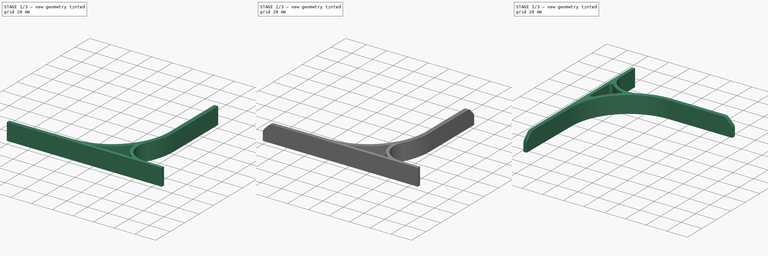
[diagram: build sequence overview — one tinted view per stage of 3, left to right]
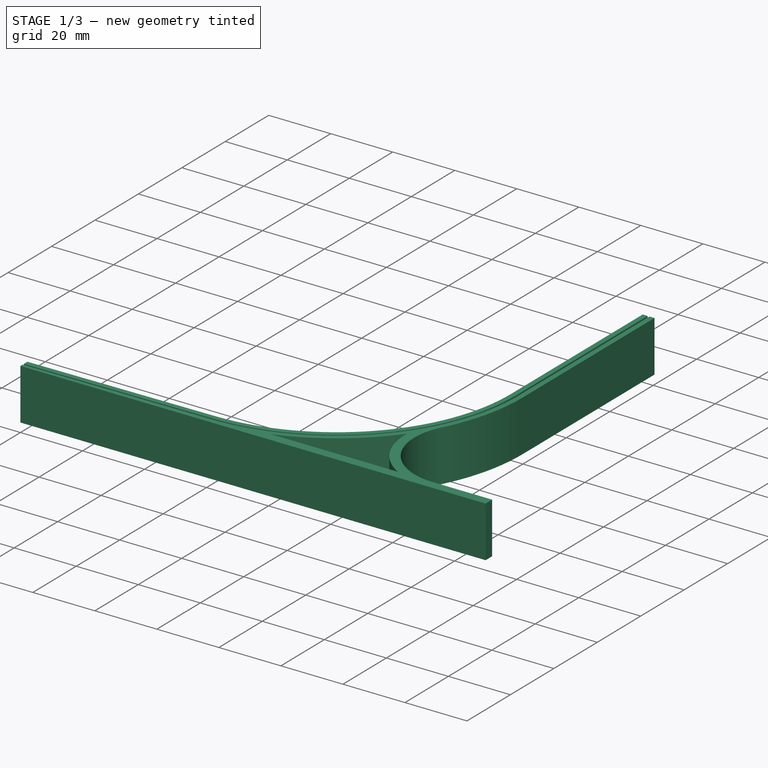
[diagram: stage 1 of 3 — iso view after this stage's code; geometry added in this stage tinted green]
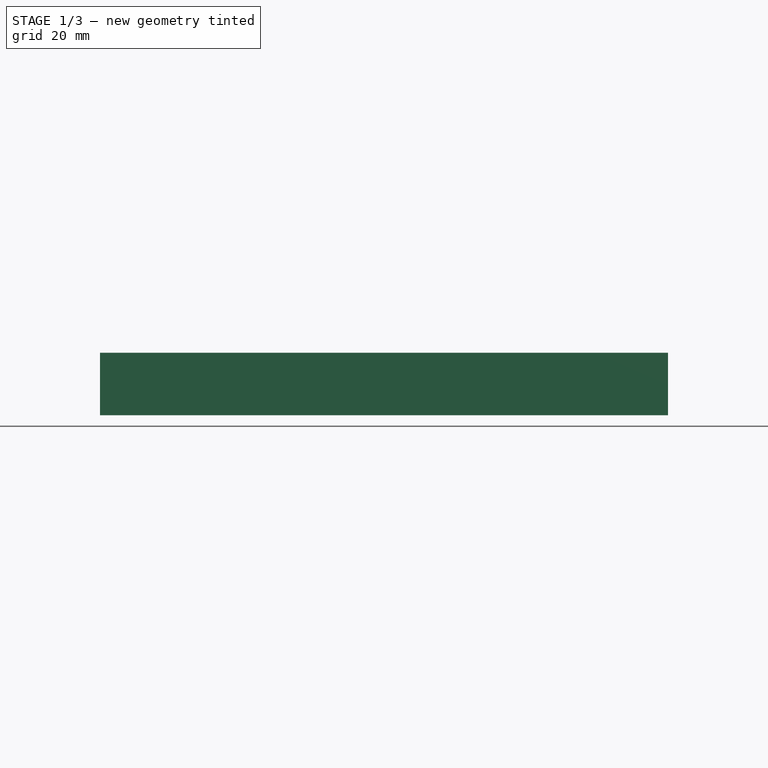
[diagram: stage 1 of 3 — front view after this stage's code; geometry added in this stage tinted green]
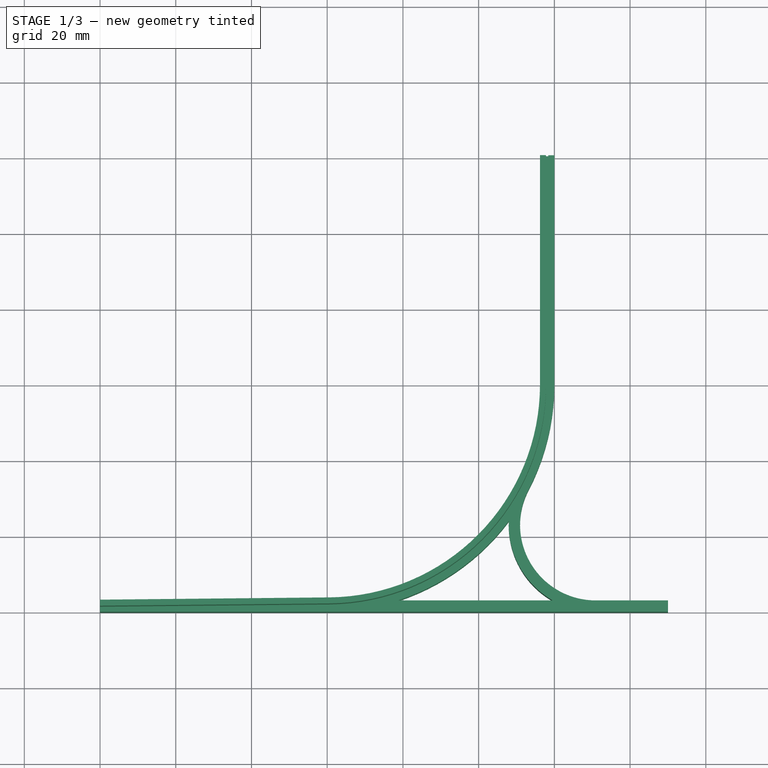
[diagram: stage 1 of 3 — top view after this stage's code; geometry added in this stage tinted green]
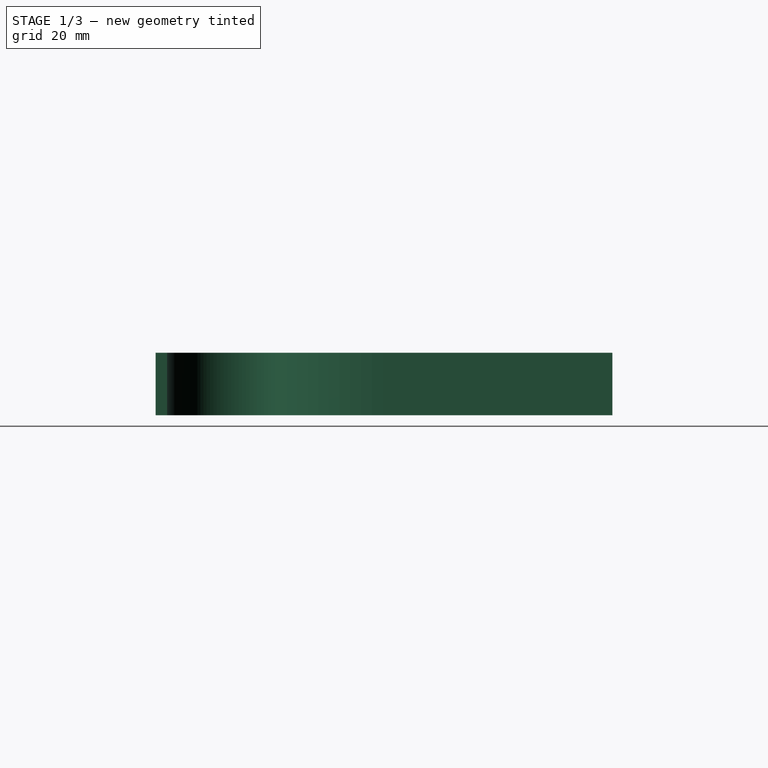
[diagram: stage 1 of 3 — right view after this stage's code; geometry added in this stage tinted green]
FCSTD DOCUMENT  (FreeCAD 0.20R28441 +2 (Git))
Label: photo-studio-stand
License: All rights reserved
LicenseURL: http://en.wikipedia.org/wiki/All_rights_reserved
objects: Sketcher::SketchObject×4, PartDesign::Chamfer×2, PartDesign::Fillet×2, PartDesign::AdditivePipe×1, PartDesign::Pocket×1, PartDesign::Pad×1, PartDesign::Body×1, Part::Mirroring×1
note: 20 computed .brp shape members not serialized (recipe doc carries the construction recipe); baked Part::Feature solids carry a one-line shape summary decoded from their .brp

FEATURE [Sketcher::SketchObject] Sketch
  FullyConstrained = true
  MapMode = 5
  Support = -> [XY_Plane]
  sketch-geometry (3):
    g0: LineSegment StartX=-120 StartY=-0.6 StartZ=0 EndX=-59.4059 EndY=4.405e-13 EndZ=0
    g1: ArcOfCircle CenterX=-60 CenterY=59.9971 CenterZ=0 NormalX=0 NormalY=0 NormalZ=1 AngleXU=0 Radius=60 StartAngle=4.72229 EndAngle=6.28319
    g2: LineSegment StartX=-2.84e-14 StartY=59.9971 StartZ=0 EndX=-2.84e-14 EndY=120.594 EndZ=0
  constraints (9):
    c: PointOnObject(g0,g-1)
    c: Tangent(g0,g1) = -1.5708
    c: PointOnObject(g1,g-2)
    c: Tangent(g1,g2) = -1.5708
    c: DistanceX(g0,g-1) = 120  'length'
    c: Equal(g0,g2)
    c: Radius(g1) = 60
    c: DistanceY(g0,g-1) = 0.6
    c: Vertical(g2)
FEATURE [Sketcher::SketchObject] Sketch001
  AttachmentOffset = pos=(0,0,-120) rot=(0,0,1;0rad)
  ExternalGeometry = -> [Sketch]
  FullyConstrained = true
  MapMode = 5
  Placement = pos=(-120,2.66e-14,-2.66e-14) rot=(0.57735,0.57735,0.57735;2.0944rad)
  Support = -> [YZ_Plane]
  expr: .AttachmentOffset.Base.z = -Sketch.Constraints.length
  sketch-geometry (8):
    g0: LineSegment StartX=-0.6 StartY=2.65e-14 StartZ=0 EndX=-0.6 EndY=16.5 EndZ=0
    g1: LineSegment StartX=-0.6 StartY=16.5 StartZ=0 EndX=1 EndY=16.5 EndZ=0
    g2: LineSegment StartX=1 StartY=16.5 StartZ=0 EndX=1 EndY=1.5 EndZ=0
    g3: LineSegment StartX=1 StartY=1.5 StartZ=0 EndX=1.6 EndY=1.5 EndZ=0
    g4: LineSegment StartX=1.6 StartY=1.5 StartZ=0 EndX=1.6 EndY=16.5 EndZ=0
    g5: LineSegment StartX=1.6 StartY=16.5 StartZ=0 EndX=3.2 EndY=16.5 EndZ=0
    g6: LineSegment StartX=3.2 StartY=16.5 StartZ=0 EndX=3.2 EndY=0 EndZ=0
    g7: LineSegment StartX=3.2 StartY=0 StartZ=0 EndX=-0.6 EndY=2.65e-14 EndZ=0
  constraints (23):
    c: Coincident(g0,g-3)
    c: Coincident(g0,g1)
    c: Vertical(g2)
    c: Coincident(g2,g3)
    c: Coincident(g3,g4)
    c: Vertical(g4)
    c: Coincident(g5,g6)
    c: PointOnObject(g6,g-1)
    c: Coincident(g6,g7)
    c: Vertical(g6)
    c: Horizontal(g1)
    c: Horizontal(g5)
    c: DistanceY(g0,g0) = 16.5  'height'
    c: Equal(g1,g5)
    c: DistanceY(g2,g1) = 15
    c: Horizontal(g3)
    c: DistanceX(g3,g3) = 0.6
    c: Vertical(g0)
    c: Horizontal(g1,g5)
    c: Coincident(g0,g7)
    c: Coincident(g5,g4)
    c: Coincident(g1,g2)
    c: DistanceX(g5,g5) = 1.6
FEATURE [PartDesign::AdditivePipe] AdditivePipe  label="Führungsschiene"
  AuxilleryCurvelinear = true
  AuxillerySpineTangent = false
  Binormal = (0,0,0)
  Mode = 0
  Placement = pos=(0,0,0) rot=(0.57735,0.57735,0.57735;2.0944rad)
  Profile = -> Sketch001
  Refine = true
  Spine = -> Sketch [Edge1,Edge2,Edge3]
  SpineTangent = false
  Transformation = 0
  Transition = 0
FEATURE [Sketcher::SketchObject] Sketch002
  FullyConstrained = true
  MapMode = 5
  Support = -> [XY_Plane]
  expr: Constraints[10] = <<Sketch>>.Constraints.length
  sketch-geometry (4):
    g0: LineSegment StartX=-120 StartY=0 StartZ=0 EndX=0 EndY=0 EndZ=0
    g1: LineSegment StartX=0 StartY=0 StartZ=0 EndX=0 EndY=-10 EndZ=0
    g2: LineSegment StartX=0 StartY=-10 StartZ=0 EndX=-120 EndY=-10 EndZ=0
    g3: LineSegment StartX=-120 StartY=-10 StartZ=0 EndX=-120 EndY=0 EndZ=0
  constraints (11):
    c: Coincident(g0,g1)
    c: Coincident(g1,g2)
    c: Coincident(g2,g3)
    c: Coincident(g3,g0)
    c: Horizontal(g0)
    c: Horizontal(g2)
    c: Vertical(g1)
    c: Vertical(g3)
    c: Coincident(g0,g-1)
    c: DistanceY(g1,g1) = 10
    c: DistanceX(g2,g2) = 120
FEATURE [PartDesign::Pocket] Pocket  label="Auslauf"
  BaseFeature = -> AdditivePipe
  Direction = (0,0,-1)
  Inverse = false
  Length = 5
  Length2 = 5
  Midplane = true
  Placement = pos=(0,0,0) rot=(0.57735,0.57735,0.57735;2.0944rad)
  Profile = -> Sketch002
  ReferenceAxis = -> Sketch002 [N_Axis]
  Refine = true
  Type = 1
FEATURE [Sketcher::SketchObject] Sketch003
  ExternalGeometry = -> [Sketch]
  FullyConstrained = true
  MapMode = 5
  Support = -> [XY_Plane]
  sketch-geometry (12):
    g0: LineSegment StartX=-59.4059 StartY=4.405e-13 StartZ=0 EndX=30 EndY=4.405e-13 EndZ=0
    g1: ArcOfCircle CenterX=10.9311 CenterY=23 CenterZ=0 NormalX=0 NormalY=0 NormalZ=1 AngleXU=0 Radius=20 StartAngle=2.66082 EndAngle=4.71239
    g2: LineSegment StartX=30 StartY=4.405e-13 StartZ=0 EndX=30 EndY=3 EndZ=0
    g3: LineSegment StartX=30 StartY=3 StartZ=0 EndX=10.9311 EndY=3 EndZ=0
    g4: ArcOfCircle CenterX=-60 CenterY=59.9971 CenterZ=0 NormalX=0 NormalY=0 NormalZ=1 AngleXU=0 Radius=60 StartAngle=5.03011 EndAngle=5.63829
    g5: ArcOfCircle CenterX=10.9311 CenterY=23 CenterZ=0 NormalX=0 NormalY=0 NormalZ=1 AngleXU=0 Radius=23 StartAngle=3.10113 EndAngle=4.19591
    g6: LineSegment StartX=-41.2561 StartY=3 StartZ=0 EndX=-0.42674 EndY=3 EndZ=0
    g7: LineSegment StartX=-0.42674 StartY=3 StartZ=0 EndX=1.05471 EndY=5.6087 EndZ=0
    g8: ArcOfCircle CenterX=-60 CenterY=59.9971 CenterZ=0 NormalX=0 NormalY=0 NormalZ=1 AngleXU=0 Radius=59.5 StartAngle=4.72237 EndAngle=6.28319
    g9: LineSegment StartX=-59.4059 StartY=0.5 StartZ=0 EndX=-59.4059 EndY=4.405e-13 EndZ=0
    g10: ArcOfCircle CenterX=-60 CenterY=59.9971 CenterZ=0 NormalX=0 NormalY=0 NormalZ=1 AngleXU=0 Radius=60 StartAngle=5.80241 EndAngle=6.28319
    g11: LineSegment StartX=-0.499975 StartY=59.9971 StartZ=0 EndX=-6.39e-14 EndY=59.9971 EndZ=0
  constraints (34):
    c: Vertical(g2)
    c: DistanceX(g-1,g0) = 30
    c: Perpendicular(g1,g7)
    c: PointOnObject(g7,g1)
    c: Horizontal(g3)
    c: Coincident(g4,g6)
    c: Coincident(g6,g5)
    c: Horizontal(g6)
    c: Coincident(g5,g4)
    c: DistanceY(g2,g2) = 3
    c: Coincident(g1,g5)
    c: Equal(g7,g2)
    c: PointOnObject(g4,g-3)
    c: PointOnObject(g4,g-3)
    c: Coincident(g9,g8)
    c: Vertical(g9)
    c: Coincident(g0,g9)
    c: DistanceY(g9,g9) = 0.5
    c: Coincident(g-3,g0)
    c: PointOnObject(g1,g-3)
    c: Tangent(g10,g1) = 1.5708
    c: Coincident(g8,g4)
    c: Coincident(g8,g10)
    c: Coincident(g2,g3)
    c: Coincident(g2,g0)
    c: Horizontal(g0)
    c: Tangent(g1,g3) = 1.5708
    c: Horizontal(g5,g1)
    c: Radius(g1) = 20
    c: Coincident(g10,g-3)
    c: Coincident(g11,g8)
    c: Coincident(g11,g10)
    c: Horizontal(g11)
    c: Coincident(g7,g5)
FEATURE [PartDesign::Pad] Pad  label="Ständer"
  BaseFeature = -> Pocket
  Direction = (0,0,1)
  Length = 16.5
  Length2 = 10
  Placement = pos=(0,0,0) rot=(0.57735,0.57735,0.57735;2.0944rad)
  Profile = -> Sketch003
  ReferenceAxis = -> Sketch003 [N_Axis]
  Refine = true
  Type = 0
  expr: Length = <<Sketch001>>.Constraints.height
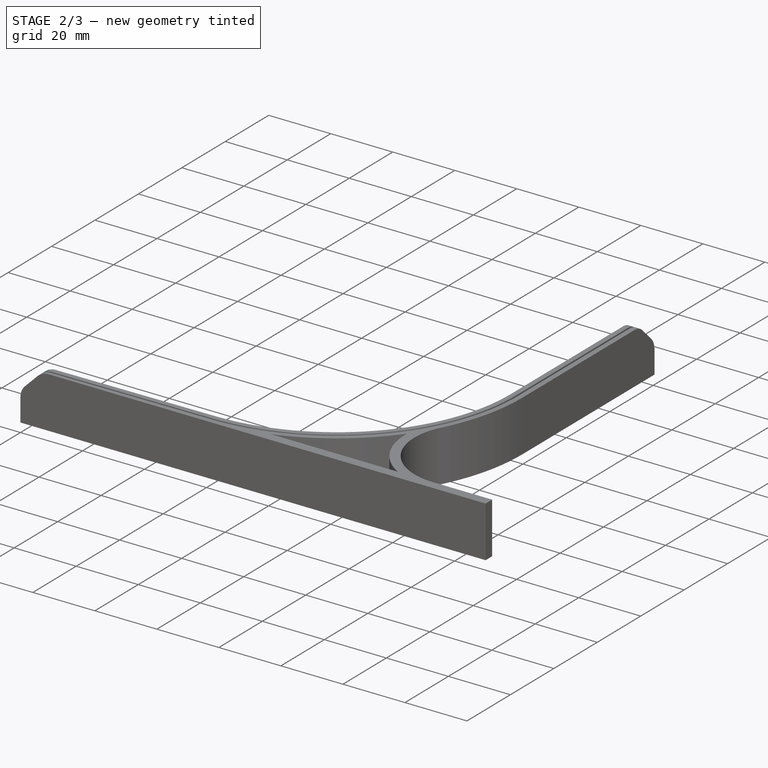
[diagram: stage 2 of 3 — iso view after this stage's code; geometry added in this stage tinted green]
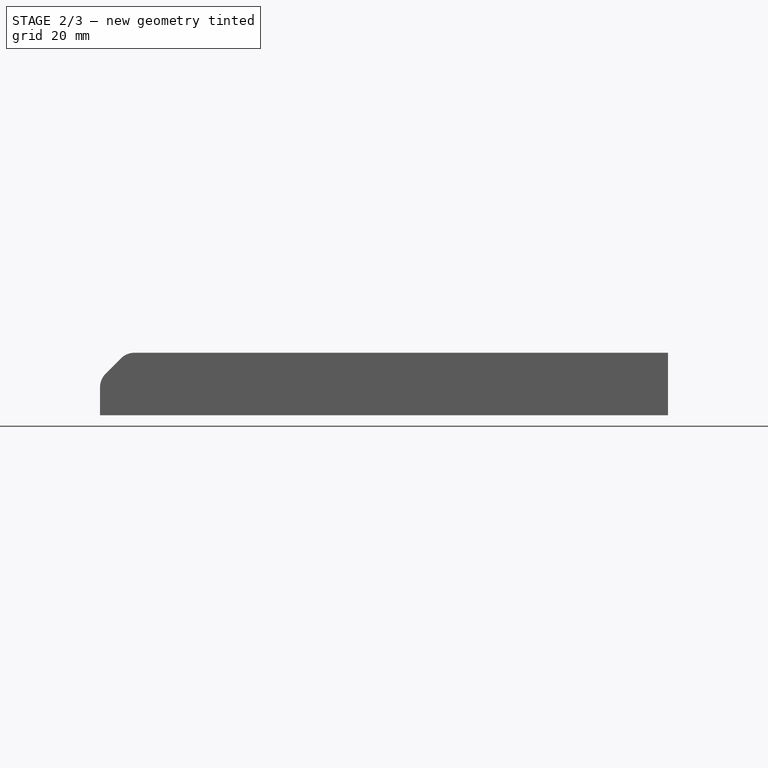
[diagram: stage 2 of 3 — front view after this stage's code; geometry added in this stage tinted green]
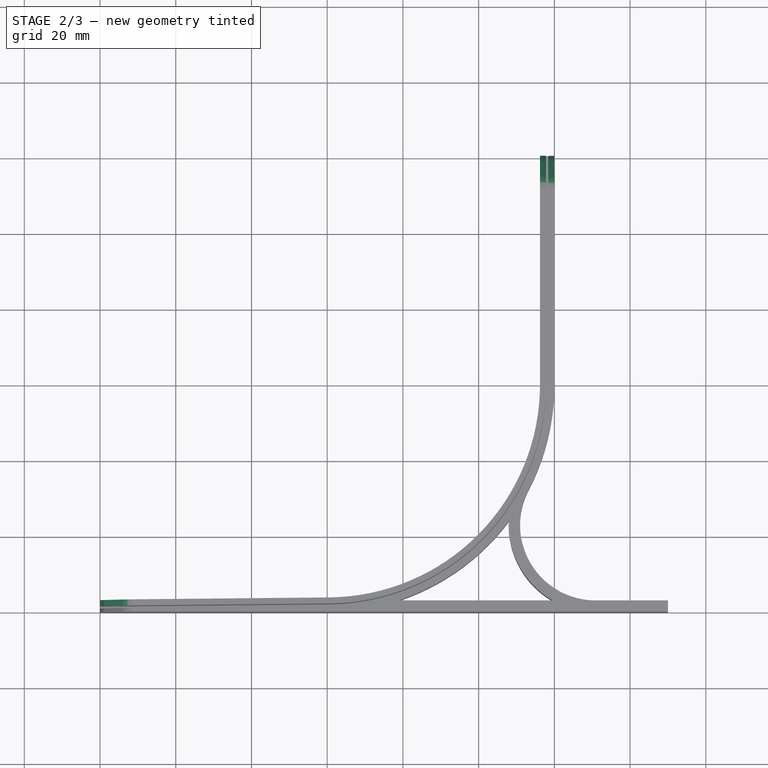
[diagram: stage 2 of 3 — top view after this stage's code; geometry added in this stage tinted green]
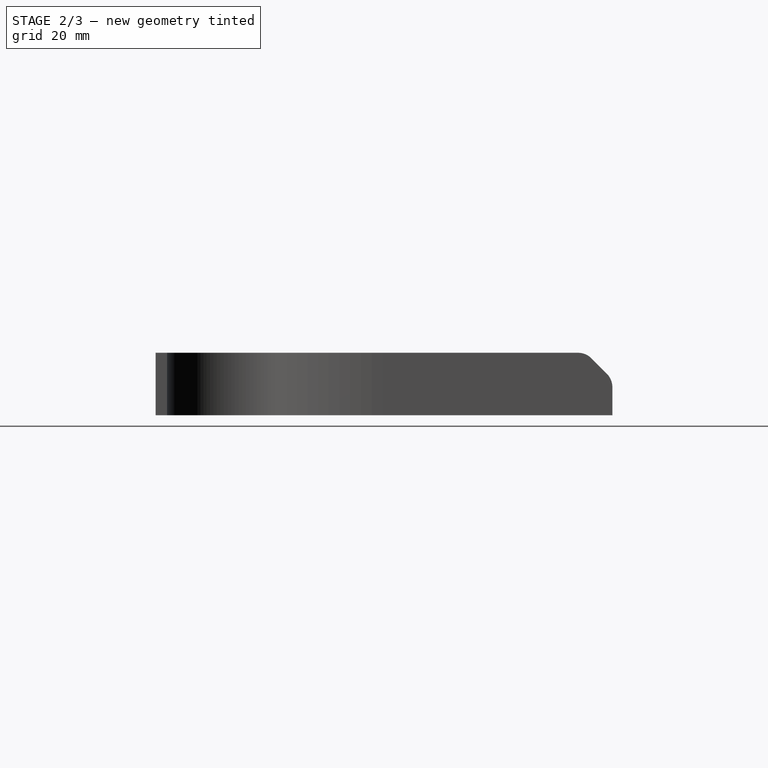
[diagram: stage 2 of 3 — right view after this stage's code; geometry added in this stage tinted green]
FEATURE [PartDesign::Chamfer] Chamfer  label="Schräge Enden"
  Angle = 45
  Base = -> Pad [Edge21,Edge25,Edge16,Edge12]
  BaseFeature = -> Pad
  ChamferType = 0
  FlipDirection = false
  Placement = pos=(0,0,0) rot=(0.57735,0.57735,0.57735;2.0944rad)
  Refine = true
  Size = 7
  Size2 = 1
  SupportTransform = false
  UseAllEdges = false
FEATURE [PartDesign::Fillet] Fillet  label="Rundung Enden001"
  Base = -> Chamfer [Edge27,Edge19,Edge15,Edge64,Edge68,Edge43,Edge75,Edge7]
  BaseFeature = -> Chamfer
  Placement = pos=(0,0,0) rot=(0.57735,0.57735,0.57735;2.0944rad)
  Radius = 5
  Refine = true
  SupportTransform = false
  UseAllEdges = false
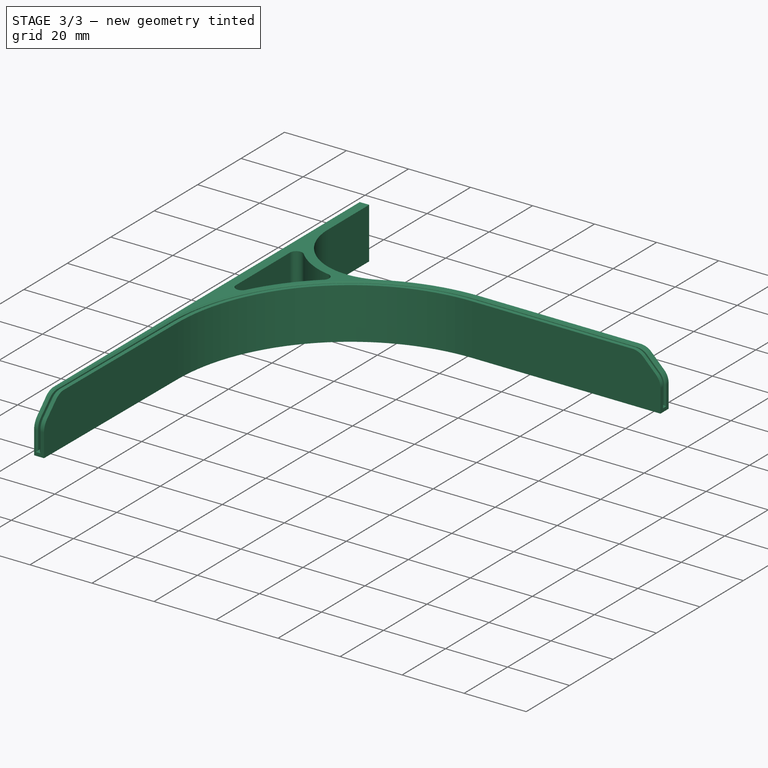
[diagram: stage 3 of 3 — iso view after this stage's code; geometry added in this stage tinted green]
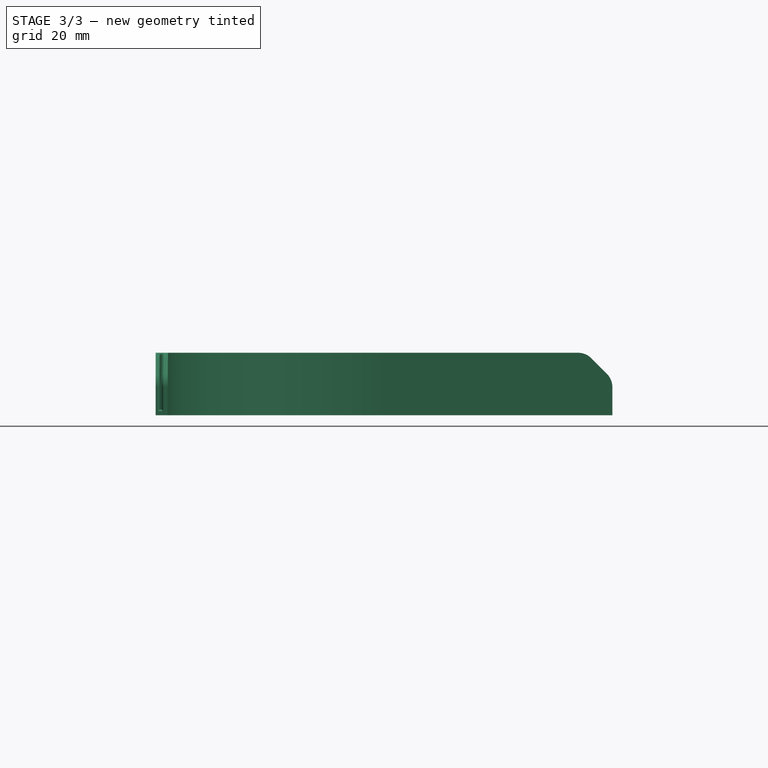
[diagram: stage 3 of 3 — front view after this stage's code; geometry added in this stage tinted green]
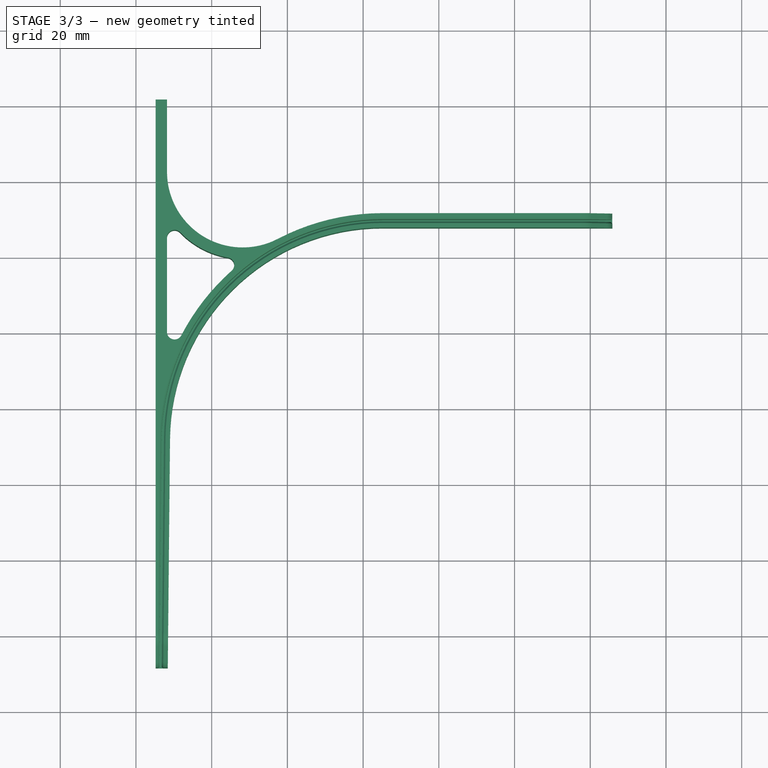
[diagram: stage 3 of 3 — top view after this stage's code; geometry added in this stage tinted green]
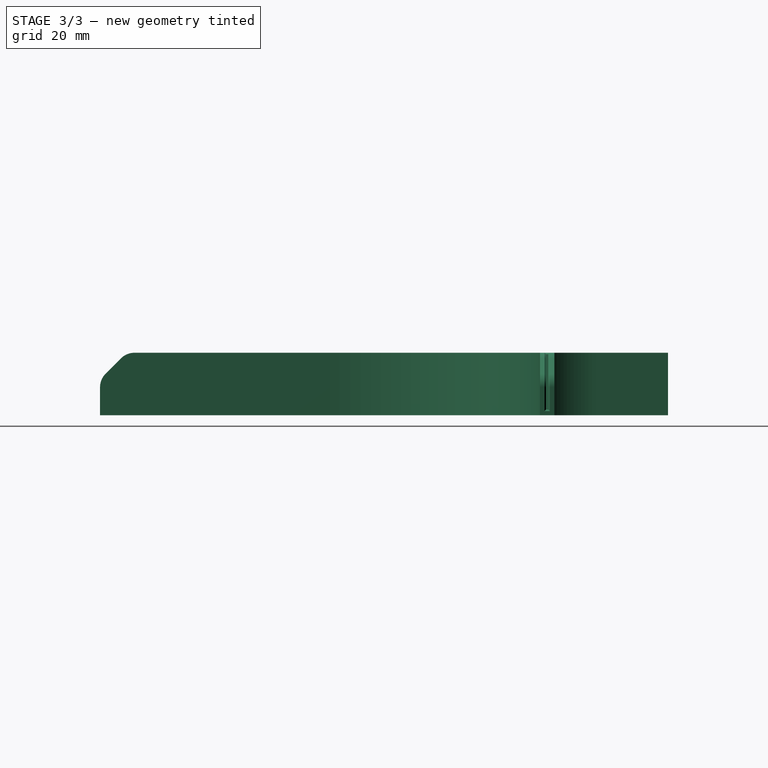
[diagram: stage 3 of 3 — right view after this stage's code; geometry added in this stage tinted green]
FEATURE [PartDesign::Chamfer] Chamfer001  label="Fase Schiene"
  Angle = 45
  Base = -> Fillet [Edge58,Edge68,Edge69,Edge43]
  BaseFeature = -> Fillet
  ChamferType = 0
  FlipDirection = false
  Placement = pos=(0,0,0) rot=(0.57735,0.57735,0.57735;2.0944rad)
  Refine = true
  Size = 0.4
  Size2 = 1
  SupportTransform = false
  UseAllEdges = false
FEATURE [PartDesign::Fillet] Fillet001  label="Rundung Aussparung"
  Base = -> Chamfer001 [Edge48,Edge45,Edge46]
  BaseFeature = -> Chamfer001
  Placement = pos=(0,0,0) rot=(0.57735,0.57735,0.57735;2.0944rad)
  Radius = 2
  Refine = true
  SupportTransform = false
  UseAllEdges = false
FEATURE [PartDesign::Body] Body  label="Links"
  Group = -> [Sketch,Sketch001,AdditivePipe,Sketch002,Pocket,Sketch003,Pad,Chamfer,Fillet,Chamfer001,Fillet001]
  Origin = -> Origin
  Tip = -> Fillet001
FEATURE [Part::Mirroring] Part__Mirroring  label="Rechts"
  Base = (0,0,0)
  Normal = (0,0,1)
  Placement = pos=(-134.8,111.6,-4.8e-14) rot=(0.707107,0.707107,0;3.14159rad)
  Source = -> Body
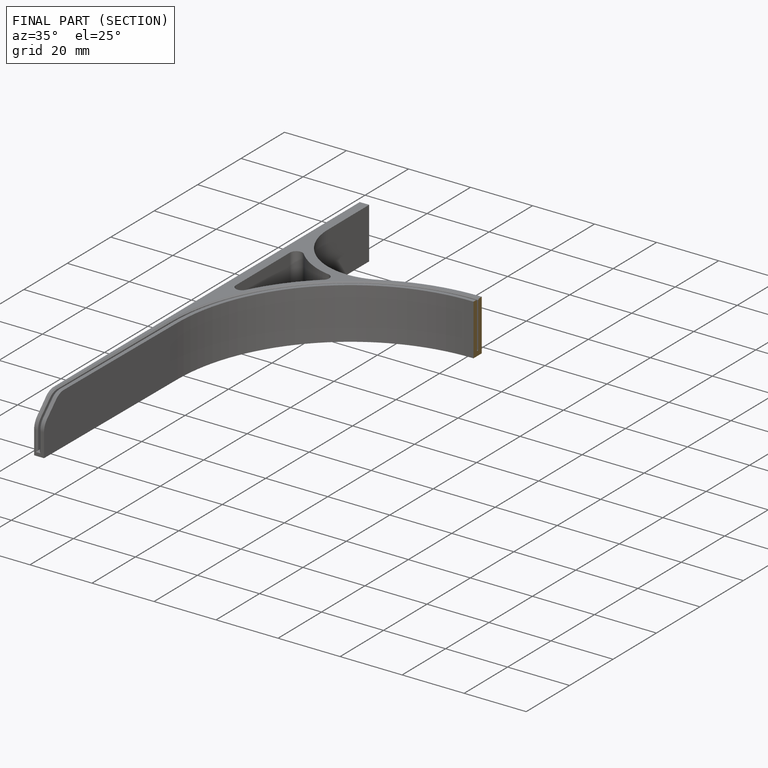
[diagram: finished part — half-section view (interior)]
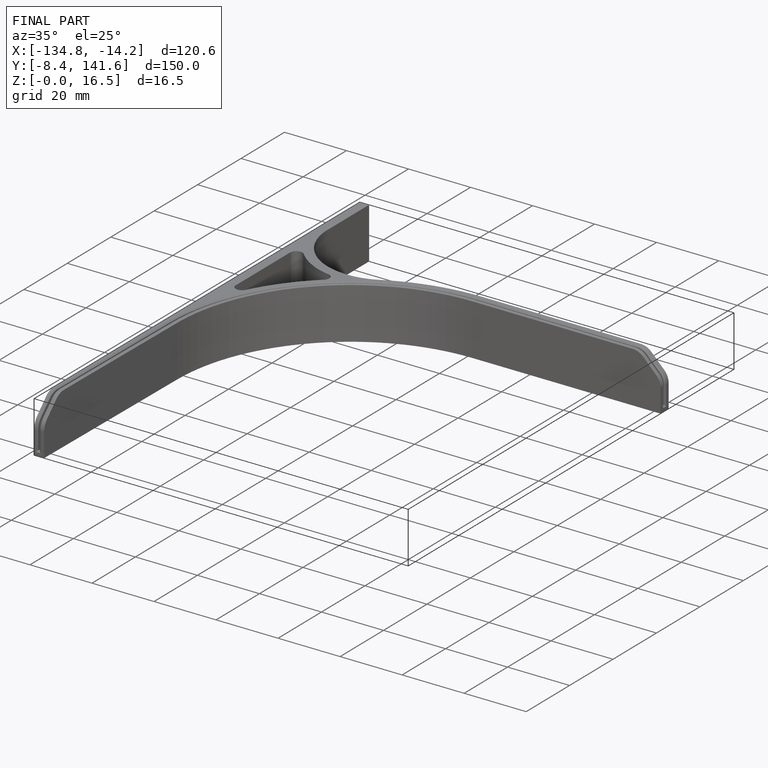
[diagram: finished part — iso view with bounding-box wireframe]
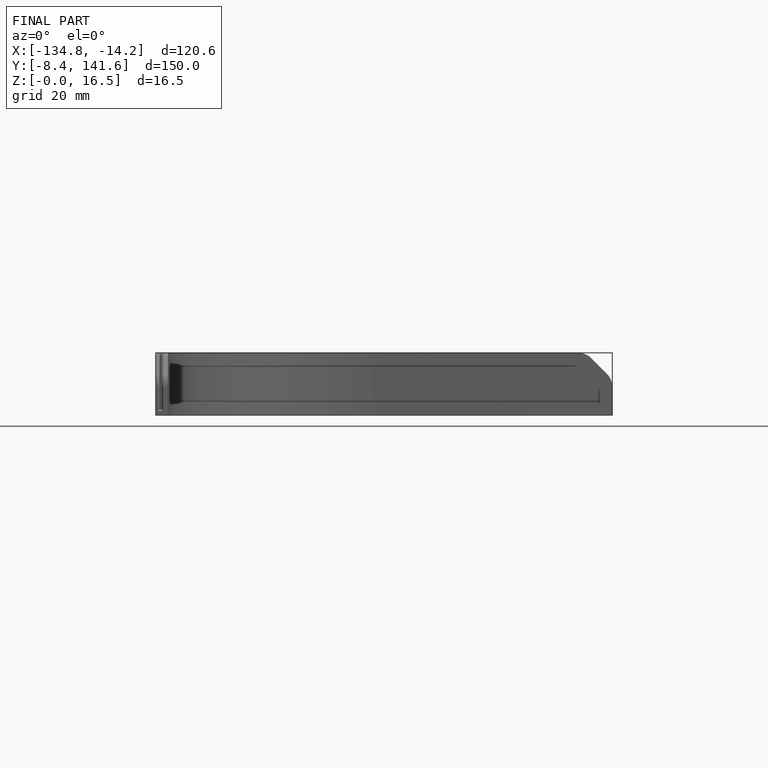
[diagram: finished part — front view with bounding-box wireframe]
